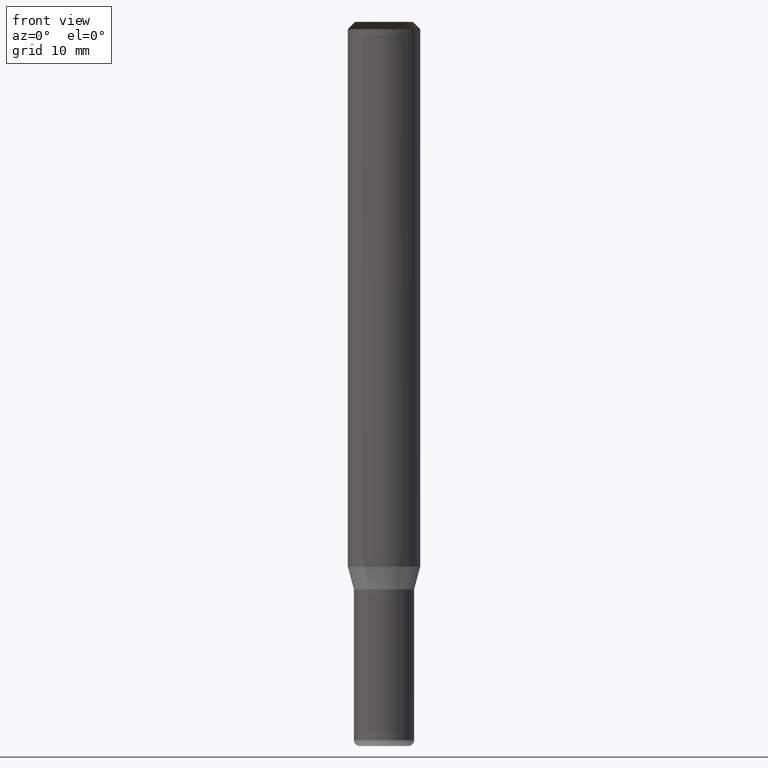
[diagram: clean part render]
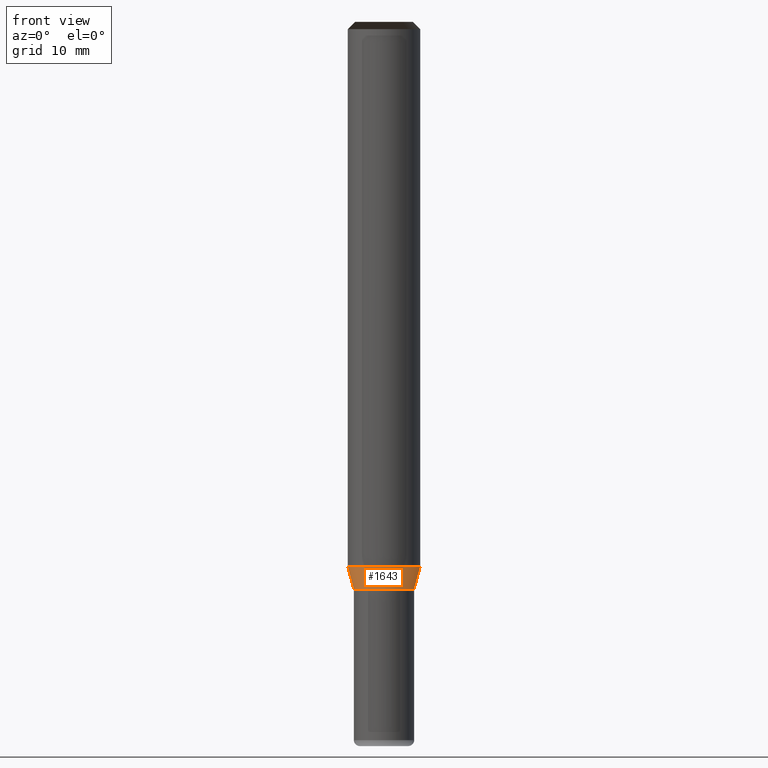
[diagram: same view with one face highlighted and labeled with its STEP entity id]
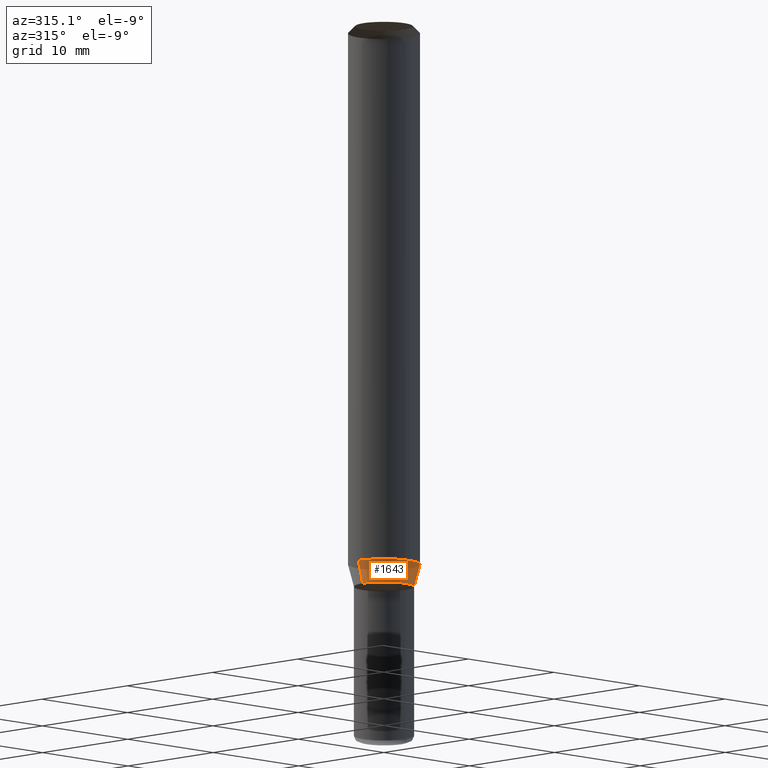
[diagram: same view with one face highlighted and labeled with its STEP entity id]
A machine part, front view. The second image highlights one B-rep face of the part: STEP entity #1643.
A second angle (auxiliary view) of the same face is appended — the face is thin or edge-on in the first view.
In plain terms, the highlighted face is a freeform B-spline surface patch.
Its self-contained STEP definition (entity closure, byte-faithful):
#1310=CARTESIAN_POINT('',(2.5,0.0,-1.866025403784));
#1314=CARTESIAN_POINT('',(-2.5,0.0,-1.866025403784));
#1331=CARTESIAN_POINT('',(-2.5,-2.5,-1.866025403784));
#1332=CARTESIAN_POINT('',(0.0,-2.5,-1.866025403784));
#1333=CARTESIAN_POINT('',(2.5,-2.5,-1.866025403784));
#1334=CARTESIAN_POINT('',(3.0,0.0,0.0));
#1338=CARTESIAN_POINT('',(-3.0,0.0,0.0));
#1350=CARTESIAN_POINT('',(-3.0,-3.0,0.0));
#1351=CARTESIAN_POINT('',(0.0,-3.0,0.0));
#1352=CARTESIAN_POINT('',(3.0,-3.0,0.0));
#1624=(
BOUNDED_SURFACE()
B_SPLINE_SURFACE(1,2,(
(#1314,#1331,#1332,#1333,#1310),
(#1338,#1350,#1351,#1352,#1334)
), .UNSPECIFIED.,.F.,.F.,.F.)
B_SPLINE_SURFACE_WITH_KNOTS((2,2),(3,2,3),(
0.0,1.0),(
0.0,0.5,1.0), .UNSPECIFIED.)
GEOMETRIC_REPRESENTATION_ITEM()
RATIONAL_B_SPLINE_SURFACE(((1.0,0.707106781187,1.0,0.707106781187,1.0),
(1.0,0.707106781187,1.0,0.707106781187,1.0)
))
REPRESENTATION_ITEM('')
SURFACE()
);
#1625=(
BOUNDED_CURVE()
B_SPLINE_CURVE(1,(#1338,#1314),.UNSPECIFIED.,.F.,.F.)
B_SPLINE_CURVE_WITH_KNOTS((2,2),
(0.0,1.0),.UNSPECIFIED.)
CURVE()
GEOMETRIC_REPRESENTATION_ITEM()
RATIONAL_B_SPLINE_CURVE((1.0,1.0))
REPRESENTATION_ITEM('')
);
#1626=(
BOUNDED_CURVE()
B_SPLINE_CURVE(2,(#1314,#1331,#1332,#1333,#1310),.UNSPECIFIED.,.F.,.F.)
B_SPLINE_CURVE_WITH_KNOTS((3,2,3),
(0.0,0.5,1.0),.UNSPECIFIED.)
CURVE()
GEOMETRIC_REPRESENTATION_ITEM()
RATIONAL_B_SPLINE_CURVE((1.0,0.707106781187,1.0,0.707106781187,1.0))
REPRESENTATION_ITEM('')
);
#1627=(
BOUNDED_CURVE()
B_SPLINE_CURVE(1,(#1310,#1334),.UNSPECIFIED.,.F.,.F.)
B_SPLINE_CURVE_WITH_KNOTS((2,2),
(0.0,1.0),.UNSPECIFIED.)
CURVE()
GEOMETRIC_REPRESENTATION_ITEM()
RATIONAL_B_SPLINE_CURVE((1.0,1.0))
REPRESENTATION_ITEM('')
);
#1628=(
BOUNDED_CURVE()
B_SPLINE_CURVE(2,(#1334,#1352,#1351,#1350,#1338),.UNSPECIFIED.,.F.,.F.)
B_SPLINE_CURVE_WITH_KNOTS((3,2,3),
(0.0,0.5,1.0),.UNSPECIFIED.)
CURVE()
GEOMETRIC_REPRESENTATION_ITEM()
RATIONAL_B_SPLINE_CURVE((1.0,0.707106781187,1.0,0.707106781187,1.0))
REPRESENTATION_ITEM('')
);
#1629=VERTEX_POINT('',#1310);
#1630=VERTEX_POINT('',#1314);
#1631=VERTEX_POINT('',#1334);
#1632=VERTEX_POINT('',#1338);
#1633=EDGE_CURVE('',#1632,#1630,#1625,.T.);
#1634=EDGE_CURVE('',#1630,#1629,#1626,.T.);
#1635=EDGE_CURVE('',#1629,#1631,#1627,.T.);
#1636=EDGE_CURVE('',#1631,#1632,#1628,.T.);
#1637=ORIENTED_EDGE('',*,*,#1633,.T.);
#1638=ORIENTED_EDGE('',*,*,#1634,.T.);
#1639=ORIENTED_EDGE('',*,*,#1635,.T.);
#1640=ORIENTED_EDGE('',*,*,#1636,.T.);
#1641=EDGE_LOOP('',(#1637,#1638,#1639,#1640));
#1642=FACE_OUTER_BOUND('',#1641,.T.);
#1643=ADVANCED_FACE('',(#1642),#1624,.T.);